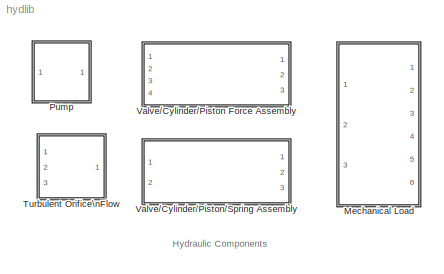
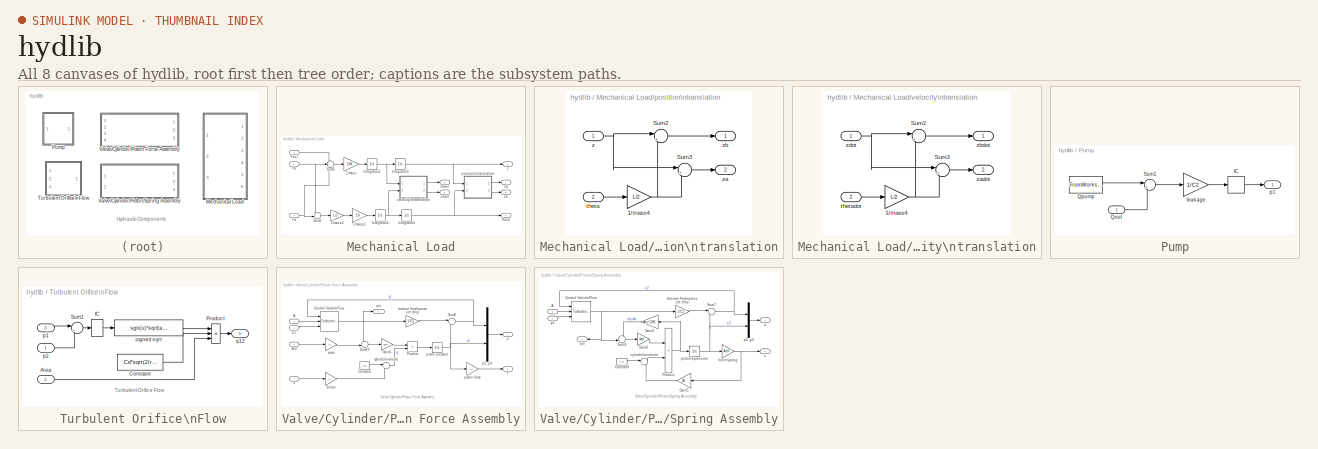
[diagram: thumbnail index - all 8 canvases of the model, root first then tree order]
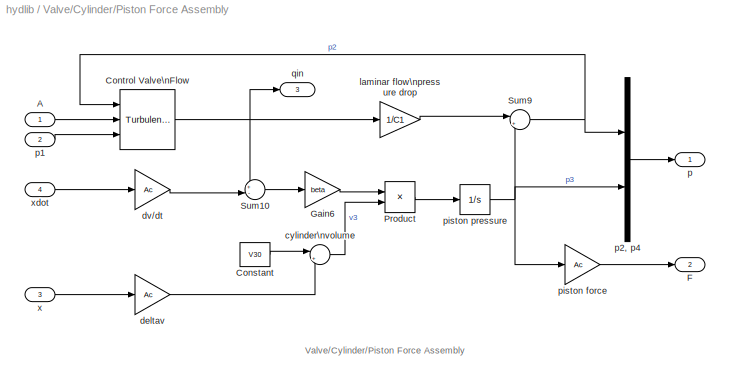
MODEL hydlib
KIND library
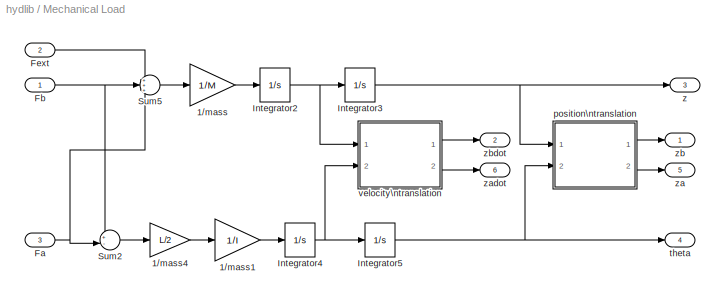
BLOCK [SubSystem] Mechanical Load
  MaskCallbackString = ||
  MaskDescription = This block models a rigid rod subject to forces Fa and Fb at either end and Fext at its center.  The outputs z, za and zb represent linear displacement and theta is the angle of rotation.
  MaskDisplay = plot(-25,-8,100,108,[40 50 60 50 40],[10 10 90 90 10], [0 40], [10 10], [30 40 30], [8 10 12], [40 50 40], [88 90 92], [0 50], [90 90], [15 45], [49 49], [15 45], [51 51], [20 10 20], [48 50 52], 50*ones(2,10), [0:10:90; 5:10:95])
  MaskEnableString = on,on,on
  MaskHelp = See \"Using Simulink and Stateflow in Automotive Applications\" for a mathematical derivation of the subsystem operation.  Contact your MathWorks distributor to obtain a copy.
  MaskIconFrame = on
  MaskIconOpaque = off
  MaskIconRotate = port
  MaskIconUnits = autoscale
  MaskPromptString = Length:|Mass at center of rotation:|Moment of inertia:
  MaskStyleString = edit,edit,edit
  MaskTabNameString = ,,
  MaskToolTipString = on,on,on
  MaskTunableValueString = on,on,on
  MaskType = Rod
  MaskValueString = L|M|I
  MaskVarAliasString = ,,
  MaskVariables = L=@1;M=@2;I=@3;
  MaskVisibilityString = on,on,on
  MinAlgLoopOccurrences = off
  Ports = [3, 6]
  PropExecContextAcrossSSBoundary = on
  RTWSystemCode = Auto
  TreatAsAtomicUnit = off
BLOCK [Gain] Mechanical Load/1//mass
  Gain = 1/M
BLOCK [Gain] Mechanical Load/1//mass1
  Gain = 1/I
BLOCK [Gain] Mechanical Load/1//mass4
  Gain = L/2
BLOCK [Inport] Mechanical Load/Fa
  IconDisplay = Port number
  LatchInput = off
  Port = 3
BLOCK [Inport] Mechanical Load/Fb
  IconDisplay = Port number
  LatchInput = off
  Port = 1
BLOCK [Inport] Mechanical Load/Fext
  IconDisplay = Port number
  LatchInput = off
  Port = 2
BLOCK [Integrator] Mechanical Load/Integrator2
  LowerSaturationLimit = -Inf
  Ports = [1, 1]
  UpperSaturationLimit = Inf
BLOCK [Integrator] Mechanical Load/Integrator3
  LowerSaturationLimit = -Inf
  Ports = [1, 1]
  UpperSaturationLimit = Inf
BLOCK [Integrator] Mechanical Load/Integrator4
  LowerSaturationLimit = -Inf
  Ports = [1, 1]
  UpperSaturationLimit = Inf
BLOCK [Integrator] Mechanical Load/Integrator5
  LowerSaturationLimit = -Inf
  Ports = [1, 1]
  UpperSaturationLimit = Inf
BLOCK [Sum] Mechanical Load/Sum2
  IconShape = round
  Inputs = +-|
  Ports = [2, 1]
BLOCK [Sum] Mechanical Load/Sum5
  IconShape = round
  Inputs = +++
  Ports = [3, 1]
BLOCK [SubSystem] Mechanical Load/position\ntranslation
  MinAlgLoopOccurrences = off
  Ports = [2, 2]
  PropExecContextAcrossSSBoundary = on
  RTWSystemCode = Auto
  TreatAsAtomicUnit = off
BLOCK [Gain] Mechanical Load/position\ntranslation/1//mass4
  Gain = L/2
BLOCK [Sum] Mechanical Load/position\ntranslation/Sum2
  IconShape = round
  Inputs = |++
  Ports = [2, 1]
BLOCK [Sum] Mechanical Load/position\ntranslation/Sum3
  IconShape = round
  Inputs = |+-
  Ports = [2, 1]
BLOCK [Inport] Mechanical Load/position\ntranslation/theta
  IconDisplay = Port number
  LatchInput = off
  Port = 2
BLOCK [Inport] Mechanical Load/position\ntranslation/z
  IconDisplay = Port number
  LatchInput = off
  Port = 1
BLOCK [Outport] Mechanical Load/position\ntranslation/za
  IconDisplay = Port number
  InitialOutput = 0
  Port = 2
BLOCK [Outport] Mechanical Load/position\ntranslation/zb
  IconDisplay = Port number
  InitialOutput = 0
BLOCK [Outport] Mechanical Load/theta
  IconDisplay = Port number
  InitialOutput = 0
  Port = 4
BLOCK [SubSystem] Mechanical Load/velocity\ntranslation
  MinAlgLoopOccurrences = off
  Ports = [2, 2]
  PropExecContextAcrossSSBoundary = on
  RTWSystemCode = Auto
  TreatAsAtomicUnit = off
BLOCK [Gain] Mechanical Load/velocity\ntranslation/1//mass4
  Gain = L/2
BLOCK [Sum] Mechanical Load/velocity\ntranslation/Sum2
  IconShape = round
  Inputs = |++
  Ports = [2, 1]
BLOCK [Sum] Mechanical Load/velocity\ntranslation/Sum3
  IconShape = round
  Inputs = |+-
  Ports = [2, 1]
BLOCK [Inport] Mechanical Load/velocity\ntranslation/thetadot
  IconDisplay = Port number
  LatchInput = off
  Port = 2
BLOCK [Outport] Mechanical Load/velocity\ntranslation/zadot
  IconDisplay = Port number
  InitialOutput = 0
  Port = 2
BLOCK [Outport] Mechanical Load/velocity\ntranslation/zbdot
  IconDisplay = Port number
  InitialOutput = 0
BLOCK [Inport] Mechanical Load/velocity\ntranslation/zdot
  IconDisplay = Port number
  LatchInput = off
  Port = 1
BLOCK [Outport] Mechanical Load/z
  IconDisplay = Port number
  InitialOutput = 0
  Port = 3
BLOCK [Outport] Mechanical Load/za
  IconDisplay = Port number
  InitialOutput = 0
  Port = 5
BLOCK [Outport] Mechanical Load/zadot
  IconDisplay = Port number
  InitialOutput = 0
  Port = 6
BLOCK [Outport] Mechanical Load/zb
  IconDisplay = Port number
  InitialOutput = 0
BLOCK [Outport] Mechanical Load/zbdot
  IconDisplay = Port number
  InitialOutput = 0
  Port = 2
BLOCK [SubSystem] Pump
  MaskCallbackString = |||
  MaskDescription = The pump model provides a supply pressure for a hydraulic system.  The gross flow, Qpump, is split between the supply flow demand (load), Qout, and leakage, Qleak.  The Time and Pump flow vectors entered below specify Qpump and the leakage flow gain determines Qleak = C2*p1, where p1 is the supply pressure.
  MaskDisplay = plot(cos(0:0.1:2*pi),sin(0:0.1:2*pi), [0.5 1 0.5 0.5],[-0.3 0 0.3 -0.3])
  MaskEnableString = on,on,on,on
  MaskHelp = See \"Using Simulink and Stateflow in Automotive Applications\" for a mathematical derivation of the subsystem operation.  Contact your MathWorks distributor to obtain a copy.
  MaskIconFrame = on
  MaskIconOpaque = on
  MaskIconRotate = port
  MaskIconUnits = autoscale
  MaskInitialization = T = t';\nQ = Qpump';
  MaskPromptString = Time:|Pump flow:|Initial pressure:|Leakage flow gain:
  MaskStyleString = edit,edit,edit,edit
  MaskTabNameString = ,,,
  MaskToolTipString = on,on,on,on
  MaskTunableValueString = on,on,on,on
  MaskType = Pump
  MaskValueString = [0        .04     .04     .05    .05     .1]|Qmax*[1 1 0 0 1 1]|Qmax/C2*2|C2
  MaskVarAliasString = ,,,
  MaskVariables = t=@1;Qpump=@2;p10=@3;C2=@4;
  MaskVisibilityString = on,on,on,on
  MinAlgLoopOccurrences = off
  Ports = [1, 1]
  PropExecContextAcrossSSBoundary = on
  RTWSystemCode = Auto
  TreatAsAtomicUnit = off
BLOCK [InitialCondition] Pump/IC
  Value = p10
BLOCK [Inport] Pump/Qout
  IconDisplay = Port number
  LatchInput = off
  Port = 1
BLOCK [FromWorkspace] Pump/Qpump
  SampleTime = 0
  VariableName = [T,Q]
BLOCK [Sum] Pump/Sum1
  IconShape = round
  Inputs = |+-
  Ports = [2, 1]
BLOCK [Gain] Pump/leakage
  Gain = 1/C2
BLOCK [Outport] Pump/p1
  IconDisplay = Port number
  InitialOutput = 0
BLOCK [SubSystem] Turbulent Orifice\nFlow
  MaskDisplay = plot(-0.75,-1.25,0.75,1.25,[0 0],[1 -1],0.5*cos(-pi/4:.1:pi/4)-0.55, 0.5*sin(-pi/4:.1:pi/4),-0.5*cos(-pi/4:.1:pi/4)+0.55, 0.5*sin(-pi/4:.1:pi/4));\nplot([-0.4, 0.4], [-0.4, 0.4], [0.3, 0.4], [0.4, 0.4], [0.37 0.4], [0.25, 0.4])
  MaskHelp = See \"Using Simulink and Stateflow in Automotive Applications\" for a mathematical derivation of the subsystem operation.  Contact your MathWorks distributor to obtain a copy.
  MaskIconFrame = on
  MaskIconOpaque = off
  MaskIconRotate = none
  MaskIconUnits = autoscale
  MinAlgLoopOccurrences = off
  Ports = [3, 1]
  PropExecContextAcrossSSBoundary = on
  RTWSystemCode = Auto
  TreatAsAtomicUnit = off
BLOCK [Inport] Turbulent Orifice\nFlow/Area
  IconDisplay = Port number
  LatchInput = off
  Port = 2
BLOCK [Constant] Turbulent Orifice\nFlow/Constant
  Value = Cd*sqrt(2/rho)
BLOCK [InitialCondition] Turbulent Orifice\nFlow/IC
  Value = 0
BLOCK [Product] Turbulent Orifice\nFlow/Product
  Inputs = 3
  Ports = [3, 1]
BLOCK [Sum] Turbulent Orifice\nFlow/Sum1
  IconShape = round
  Inputs = |+-
  Ports = [2, 1]
BLOCK [Inport] Turbulent Orifice\nFlow/p1
  IconDisplay = Port number
  LatchInput = off
  Port = 3
BLOCK [Inport] Turbulent Orifice\nFlow/p2
  IconDisplay = Port number
  LatchInput = off
  Port = 1
BLOCK [Outport] Turbulent Orifice\nFlow/q12
  IconDisplay = Port number
  InitialOutput = 0
BLOCK [Fcn] Turbulent Orifice\nFlow/signed sqrt
  Expr = sgn(u)*sqrt(abs(u))
BLOCK [SubSystem] Valve//Cylinder//Piston Force Assembly
  MaskCallbackString = ||||||
  MaskDescription = A hydraulic cylinder is fed through a variable-area control valve, producing an axial piston force.  \n\ninputs                                              outputs\nA = valve flow area                         p = valve and piston pressure vector\np1 = supply pressure                       F = piston force\nx = load (piston) position                 qin = input flow rate\nxdot = load (piston) velo...<+128ch>
  MaskDisplay = plot(0,30,200,70,[180,94,140,140,180,94,94,94,10],[40,40,40,60,60,60,50,50,50],[94,94],[50,40]);plot(50+50*cos(-0.6*pi:0.05:-0.4*pi),101+50*sin(-0.6*pi:0.05:-0.4*pi));plot(50+50*cos(-0.6*pi:0.05:-0.4*pi),-1-50*sin(-0.6*pi:0.05:-0.4*pi),[40,60],[45 55],[50,60,60],[53 55 53.],[140,150;160,170;180,190]',[50;50]*ones(1,3))
  MaskEnableString = on,on,on,on,on,on,on
  MaskHelp = See \"Using Simulink and Stateflow in Automotive Applications\" for a mathematical derivation of the subsystem operation.  Contact your MathWorks distributor to obtain a copy.
  MaskIconFrame = on
  MaskIconOpaque = off
  MaskIconRotate = port
  MaskIconUnits = autoscale
  MaskPromptString = Flow gain from valve to actuator:|Actuator cross-sectional area:|Discharge coefficient:|Fluid density:|Cylinder volume at x = 0:|Bulk modulus:|Initial pressure:
  MaskStyleString = edit,edit,edit,edit,edit,edit,edit
  MaskTabNameString = ,,,,,,
  MaskToolTipString = on,on,on,on,on,on,on
  MaskTunableValueString = on,on,on,on,on,on,on
  MaskType = ValveCylinderPistonForceAssy
  MaskValueString = C1|Ac|Cd|rho|V30|beta|p30
  MaskVarAliasString = ,,,,,,
  MaskVariables = C1=@1;Ac=@2;Cd=@3;rho=@4;V30=@5;beta=@6;p30=@7;
  MaskVisibilityString = on,on,on,on,on,on,on
  MinAlgLoopOccurrences = off
  Ports = [4, 3]
  PropExecContextAcrossSSBoundary = on
  RTWSystemCode = Auto
  TreatAsAtomicUnit = off
BLOCK [Inport] Valve//Cylinder//Piston Force Assembly/A
  IconDisplay = Port number
  LatchInput = off
  Port = 1
BLOCK [Constant] Valve//Cylinder//Piston Force Assembly/Constant
  Value = V30
BLOCK [Reference] Valve//Cylinder//Piston Force Assembly/Control Valve\nFlow  REF=hydlib/Turbulent Orifice\nFlow  (lib defined in mdl_a1138ae370f5)
  Ports = [3, 1]
  SourceBlock = hydlib/Turbulent Orifice\nFlow
  SourceType = Unknown
BLOCK [Outport] Valve//Cylinder//Piston Force Assembly/F
  IconDisplay = Port number
  InitialOutput = 0
  Port = 2
BLOCK [Gain] Valve//Cylinder//Piston Force Assembly/Gain6
  Gain = beta
BLOCK [Product] Valve//Cylinder//Piston Force Assembly/Product
  Inputs = */
  Ports = [2, 1]
BLOCK [Sum] Valve//Cylinder//Piston Force Assembly/Sum10
  IconShape = round
  Inputs = +-|
  Ports = [2, 1]
BLOCK [Sum] Valve//Cylinder//Piston Force Assembly/Sum9
  IconShape = round
  Inputs = |++
  Ports = [2, 1]
BLOCK [Sum] Valve//Cylinder//Piston Force Assembly/cylinder\nvolume
  IconShape = round
  Inputs = |++
  Ports = [2, 1]
BLOCK [Gain] Valve//Cylinder//Piston Force Assembly/deltav
  Gain = Ac
BLOCK [Gain] Valve//Cylinder//Piston Force Assembly/dv//dt
  Gain = Ac
BLOCK [Gain] Valve//Cylinder//Piston Force Assembly/laminar flow\npressure drop
  Gain = 1/C1
BLOCK [Outport] Valve//Cylinder//Piston Force Assembly/p
  IconDisplay = Port number
  InitialOutput = 0
BLOCK [Inport] Valve//Cylinder//Piston Force Assembly/p1
  IconDisplay = Port number
  LatchInput = off
  Port = 2
BLOCK [Mux] Valve//Cylinder//Piston Force Assembly/p2, p4
  DisplayOption = bar
  Inputs = 2
  Ports = [2, 1]
BLOCK [Gain] Valve//Cylinder//Piston Force Assembly/piston force
  Gain = Ac
BLOCK [Integrator] Valve//Cylinder//Piston Force Assembly/piston pressure
  InitialCondition = p30
  LimitOutput = on
  LowerSaturationLimit = 0
  Ports = [1, 1]
BLOCK [Outport] Valve//Cylinder//Piston Force Assembly/qin
  IconDisplay = Port number
  InitialOutput = 0
  Port = 3
BLOCK [Inport] Valve//Cylinder//Piston Force Assembly/x
  IconDisplay = Port number
  LatchInput = off
  Port = 3
BLOCK [Inport] Valve//Cylinder//Piston Force Assembly/xdot
  IconDisplay = Port number
  LatchInput = off
  Port = 4
BLOCK [SubSystem] Valve//Cylinder//Piston//Spring Assembly
  MaskCallbackString = ||||||
  MaskDescription = A hydraulic cylinder is fed through a variable-area control valve, producing an axial piston force which compresses a linear spring.\n\ninputs                                              outputs\nA = valve flow area                         p = valve and piston pressure vector\np1 = supply pressure                       x = piston displacement\n                                                     ...<+148ch>
  MaskDisplay = plot(0,30,210,70,[180,94,140,140,180,94,94,94,10],[40,40,40,60,60,60,50,50,50],[94,94],[50,40]);plot(50+50*cos(-0.6*pi:0.05:-0.4*pi),101+50*sin(-0.6*pi:0.05:-0.4*pi));plot(50+50*cos(-0.6*pi:0.05:-0.4*pi),-1-50*sin(-0.6*pi:0.05:-0.4*pi),[40,60],[45 55],[50,60,60],[53 55 53.],[140,150;160,170;180,190]',[50;50]*ones(1,3), [180 180], [60 55], [180 180], [40 45], 143.5+3.5*cos(0:.1:6.28), 57.5+2*sin(0:...<+244ch>
  MaskEnableString = on,on,on,on,on,on,on
  MaskHelp = See \"Using Simulink and Stateflow in Automotive Applications\" for a mathematical derivation of the subsystem operation.  Contact your MathWorks distributor to obtain a copy.
  MaskIconFrame = on
  MaskIconOpaque = off
  MaskIconRotate = none
  MaskIconUnits = autoscale
  MaskPromptString = Spring rate:|Flow gain from valve to actuator:|Actuator cross-sectional area:|Discharge coefficient:|Fluid density:|Cylinder volume at x = 0:|Bulk modulus:
  MaskStyleString = edit,edit,edit,edit,edit,edit,edit
  MaskTabNameString = ,,,,,,
  MaskToolTipString = on,on,on,on,on,on,on
  MaskTunableValueString = on,on,on,on,on,on,on
  MaskType = Valve/Cylinder/Piston/Spring Assembly
  MaskValueString = K|C1|Ac|Cd|rho|V30|beta
  MaskVarAliasString = ,,,,,,
  MaskVariables = K=@1;C1=@2;Ac=@3;Cd=@4;rho=@5;V30=@6;beta=@7;
  MaskVisibilityString = on,on,on,on,on,on,on
  MinAlgLoopOccurrences = off
  Ports = [2, 3]
  PropExecContextAcrossSSBoundary = on
  RTWSystemCode = Auto
  TreatAsAtomicUnit = off
BLOCK [Inport] Valve//Cylinder//Piston//Spring Assembly/A
  IconDisplay = Port number
  LatchInput = off
  Port = 2
BLOCK [Constant] Valve//Cylinder//Piston//Spring Assembly/Constant
  Value = V30
BLOCK [Reference] Valve//Cylinder//Piston//Spring Assembly/Control Valve\nFlow  REF=hydlib/Turbulent Orifice\nFlow  (lib defined in mdl_a1138ae370f5)
  Ports = [3, 1]
  SourceBlock = hydlib/Turbulent Orifice\nFlow
  SourceType = Unknown
BLOCK [Gain] Valve//Cylinder//Piston//Spring Assembly/Gain3
  Gain = Ac^2/K
BLOCK [Gain] Valve//Cylinder//Piston//Spring Assembly/Gain5
  Gain = Ac
BLOCK [Gain] Valve//Cylinder//Piston//Spring Assembly/Gain6
  Gain = beta
BLOCK [Product] Valve//Cylinder//Piston//Spring Assembly/Product
  Inputs = */
  Ports = [2, 1]
BLOCK [Sum] Valve//Cylinder//Piston//Spring Assembly/Sum7
  IconShape = round
  Inputs = |++
  Ports = [2, 1]
BLOCK [Sum] Valve//Cylinder//Piston//Spring Assembly/Sum8
  IconShape = round
  Inputs = -+|
  Ports = [2, 1]
BLOCK [Sum] Valve//Cylinder//Piston//Spring Assembly/cylinder\nvolume
  IconShape = round
  Inputs = |++
  Ports = [2, 1]
BLOCK [Gain] Valve//Cylinder//Piston//Spring Assembly/force//spring
  Gain = Ac/K
BLOCK [Gain] Valve//Cylinder//Piston//Spring Assembly/laminar flow\npressure drop
  Gain = 1/C1
BLOCK [Outport] Valve//Cylinder//Piston//Spring Assembly/p
  IconDisplay = Port number
  InitialOutput = 0
BLOCK [Inport] Valve//Cylinder//Piston//Spring Assembly/p1
  IconDisplay = Port number
  LatchInput = off
  Port = 1
BLOCK [Mux] Valve//Cylinder//Piston//Spring Assembly/p2, p3
  DisplayOption = bar
  Inputs = 2
  Ports = [2, 1]
BLOCK [Integrator] Valve//Cylinder//Piston//Spring Assembly/piston\npressure
  LimitOutput = on
  LowerSaturationLimit = 0
  Ports = [1, 1]
BLOCK [Outport] Valve//Cylinder//Piston//Spring Assembly/qin
  IconDisplay = Port number
  InitialOutput = 0
  Port = 3
BLOCK [Outport] Valve//Cylinder//Piston//Spring Assembly/x
  IconDisplay = Port number
  InitialOutput = 0
  Port = 2
ANNOTATION (root): Hydraulic Components
ANNOTATION Turbulent Orifice\nFlow: Turbulent Orifice Flow
ANNOTATION Valve//Cylinder//Piston Force Assembly: Valve/Cylinder/Piston Force Assembly
ANNOTATION Valve//Cylinder//Piston//Spring Assembly: Valve/Cylinder/Piston/Spring Assembly
LINE Mechanical Load/1//mass1:1 -> Mechanical Load/Integrator4:1
LINE Mechanical Load/1//mass4:1 -> Mechanical Load/1//mass1:1
LINE Mechanical Load/1//mass:1 -> Mechanical Load/Integrator2:1
NET Mechanical Load/Fa:1 -> Mechanical Load/Sum2:2, Mechanical Load/Sum5:3
NET Mechanical Load/Fb:1 -> Mechanical Load/Sum2:1, Mechanical Load/Sum5:2
LINE Mechanical Load/Fext:1 -> Mechanical Load/Sum5:1
NET Mechanical Load/Integrator2:1 -> Mechanical Load/Integrator3:1, Mechanical Load/velocity\ntranslation:1
NET Mechanical Load/Integrator3:1 -> Mechanical Load/position\ntranslation:1, Mechanical Load/z:1
NET Mechanical Load/Integrator4:1 -> Mechanical Load/Integrator5:1, Mechanical Load/velocity\ntranslation:2
NET Mechanical Load/Integrator5:1 -> Mechanical Load/position\ntranslation:2, Mechanical Load/theta:1
LINE Mechanical Load/Sum2:1 -> Mechanical Load/1//mass4:1
LINE Mechanical Load/Sum5:1 -> Mechanical Load/1//mass:1
NET Mechanical Load/position\ntranslation/1//mass4:1 -> Mechanical Load/position\ntranslation/Sum2:2, Mechanical Load/position\ntranslation/Sum3:2
LINE Mechanical Load/position\ntranslation/Sum2:1 -> Mechanical Load/position\ntranslation/zb:1
LINE Mechanical Load/position\ntranslation/Sum3:1 -> Mechanical Load/position\ntranslation/za:1
LINE Mechanical Load/position\ntranslation/theta:1 -> Mechanical Load/position\ntranslation/1//mass4:1
NET Mechanical Load/position\ntranslation/z:1 -> Mechanical Load/position\ntranslation/Sum2:1, Mechanical Load/position\ntranslation/Sum3:1
LINE Mechanical Load/position\ntranslation:1 -> Mechanical Load/zb:1
LINE Mechanical Load/position\ntranslation:2 -> Mechanical Load/za:1
NET Mechanical Load/velocity\ntranslation/1//mass4:1 -> Mechanical Load/velocity\ntranslation/Sum2:2, Mechanical Load/velocity\ntranslation/Sum3:2
LINE Mechanical Load/velocity\ntranslation/Sum2:1 -> Mechanical Load/velocity\ntranslation/zbdot:1
LINE Mechanical Load/velocity\ntranslation/Sum3:1 -> Mechanical Load/velocity\ntranslation/zadot:1
LINE Mechanical Load/velocity\ntranslation/thetadot:1 -> Mechanical Load/velocity\ntranslation/1//mass4:1
NET Mechanical Load/velocity\ntranslation/zdot:1 -> Mechanical Load/velocity\ntranslation/Sum2:1, Mechanical Load/velocity\ntranslation/Sum3:1
LINE Mechanical Load/velocity\ntranslation:1 -> Mechanical Load/zbdot:1
LINE Mechanical Load/velocity\ntranslation:2 -> Mechanical Load/zadot:1
LINE Pump/IC:1 -> Pump/p1:1
LINE Pump/Qout:1 -> Pump/Sum1:2
LINE Pump/Qpump:1 -> Pump/Sum1:1
LINE Pump/Sum1:1 -> Pump/leakage:1
LINE Pump/leakage:1 -> Pump/IC:1
LINE Turbulent Orifice\nFlow/Area:1 -> Turbulent Orifice\nFlow/Product:3
LINE Turbulent Orifice\nFlow/Constant:1 -> Turbulent Orifice\nFlow/Product:2
LINE Turbulent Orifice\nFlow/IC:1 -> Turbulent Orifice\nFlow/signed sqrt:1
LINE Turbulent Orifice\nFlow/Product:1 -> Turbulent Orifice\nFlow/q12:1
LINE Turbulent Orifice\nFlow/Sum1:1 -> Turbulent Orifice\nFlow/IC:1
LINE Turbulent Orifice\nFlow/p1:1 -> Turbulent Orifice\nFlow/Sum1:1
LINE Turbulent Orifice\nFlow/p2:1 -> Turbulent Orifice\nFlow/Sum1:2
LINE Turbulent Orifice\nFlow/signed sqrt:1 -> Turbulent Orifice\nFlow/Product:1
LINE Valve//Cylinder//Piston Force Assembly/A:1 -> Valve//Cylinder//Piston Force Assembly/Control Valve\nFlow:2
LINE Valve//Cylinder//Piston Force Assembly/Constant:1 -> Valve//Cylinder//Piston Force Assembly/cylinder\nvolume:1
NET Valve//Cylinder//Piston Force Assembly/Control Valve\nFlow:1 -> Valve//Cylinder//Piston Force Assembly/Sum10:1, Valve//Cylinder//Piston Force Assembly/laminar flow\npressure drop:1, Valve//Cylinder//Piston Force Assembly/qin:1
LINE Valve//Cylinder//Piston Force Assembly/Gain6:1 -> Valve//Cylinder//Piston Force Assembly/Product:1
LINE Valve//Cylinder//Piston Force Assembly/Product:1 -> Valve//Cylinder//Piston Force Assembly/piston pressure:1
LINE Valve//Cylinder//Piston Force Assembly/Sum10:1 -> Valve//Cylinder//Piston Force Assembly/Gain6:1
NET Valve//Cylinder//Piston Force Assembly/Sum9:1 -> Valve//Cylinder//Piston Force Assembly/Control Valve\nFlow:1, Valve//Cylinder//Piston Force Assembly/p2, p4:1
LINE Valve//Cylinder//Piston Force Assembly/cylinder\nvolume:1 -> Valve//Cylinder//Piston Force Assembly/Product:2
LINE Valve//Cylinder//Piston Force Assembly/deltav:1 -> Valve//Cylinder//Piston Force Assembly/cylinder\nvolume:2
LINE Valve//Cylinder//Piston Force Assembly/dv//dt:1 -> Valve//Cylinder//Piston Force Assembly/Sum10:2
LINE Valve//Cylinder//Piston Force Assembly/laminar flow\npressure drop:1 -> Valve//Cylinder//Piston Force Assembly/Sum9:1
LINE Valve//Cylinder//Piston Force Assembly/p1:1 -> Valve//Cylinder//Piston Force Assembly/Control Valve\nFlow:3
LINE Valve//Cylinder//Piston Force Assembly/p2, p4:1 -> Valve//Cylinder//Piston Force Assembly/p:1
LINE Valve//Cylinder//Piston Force Assembly/piston force:1 -> Valve//Cylinder//Piston Force Assembly/F:1
NET Valve//Cylinder//Piston Force Assembly/piston pressure:1 -> Valve//Cylinder//Piston Force Assembly/Sum9:2, Valve//Cylinder//Piston Force Assembly/p2, p4:2, Valve//Cylinder//Piston Force Assembly/piston force:1
LINE Valve//Cylinder//Piston Force Assembly/x:1 -> Valve//Cylinder//Piston Force Assembly/deltav:1
LINE Valve//Cylinder//Piston Force Assembly/xdot:1 -> Valve//Cylinder//Piston Force Assembly/dv//dt:1
LINE Valve//Cylinder//Piston//Spring Assembly/A:1 -> Valve//Cylinder//Piston//Spring Assembly/Control Valve\nFlow:2
LINE Valve//Cylinder//Piston//Spring Assembly/Constant:1 -> Valve//Cylinder//Piston//Spring Assembly/cylinder\nvolume:1
NET Valve//Cylinder//Piston//Spring Assembly/Control Valve\nFlow:1 -> Valve//Cylinder//Piston//Spring Assembly/Sum8:2, Valve//Cylinder//Piston//Spring Assembly/laminar flow\npressure drop:1, Valve//Cylinder//Piston//Spring Assembly/qin:1
LINE Valve//Cylinder//Piston//Spring Assembly/Gain3:1 -> Valve//Cylinder//Piston//Spring Assembly/Sum8:1
LINE Valve//Cylinder//Piston//Spring Assembly/Gain5:1 -> Valve//Cylinder//Piston//Spring Assembly/cylinder\nvolume:2
LINE Valve//Cylinder//Piston//Spring Assembly/Gain6:1 -> Valve//Cylinder//Piston//Spring Assembly/Product:1
NET Valve//Cylinder//Piston//Spring Assembly/Product:1 -> Valve//Cylinder//Piston//Spring Assembly/Gain3:1, Valve//Cylinder//Piston//Spring Assembly/piston\npressure:1
NET Valve//Cylinder//Piston//Spring Assembly/Sum7:1 -> Valve//Cylinder//Piston//Spring Assembly/Control Valve\nFlow:1, Valve//Cylinder//Piston//Spring Assembly/p2, p3:1
LINE Valve//Cylinder//Piston//Spring Assembly/Sum8:1 -> Valve//Cylinder//Piston//Spring Assembly/Gain6:1
LINE Valve//Cylinder//Piston//Spring Assembly/cylinder\nvolume:1 -> Valve//Cylinder//Piston//Spring Assembly/Product:2
NET Valve//Cylinder//Piston//Spring Assembly/force//spring:1 -> Valve//Cylinder//Piston//Spring Assembly/Gain5:1, Valve//Cylinder//Piston//Spring Assembly/x:1
LINE Valve//Cylinder//Piston//Spring Assembly/laminar flow\npressure drop:1 -> Valve//Cylinder//Piston//Spring Assembly/Sum7:1
LINE Valve//Cylinder//Piston//Spring Assembly/p1:1 -> Valve//Cylinder//Piston//Spring Assembly/Control Valve\nFlow:3
LINE Valve//Cylinder//Piston//Spring Assembly/p2, p3:1 -> Valve//Cylinder//Piston//Spring Assembly/p:1
NET Valve//Cylinder//Piston//Spring Assembly/piston\npressure:1 -> Valve//Cylinder//Piston//Spring Assembly/Sum7:2, Valve//Cylinder//Piston//Spring Assembly/force//spring:1, Valve//Cylinder//Piston//Spring Assembly/p2, p3:2
note: NET lines group one-source signal fan-out (src -> all destinations, sorted); 1:1 wires keep LINE
